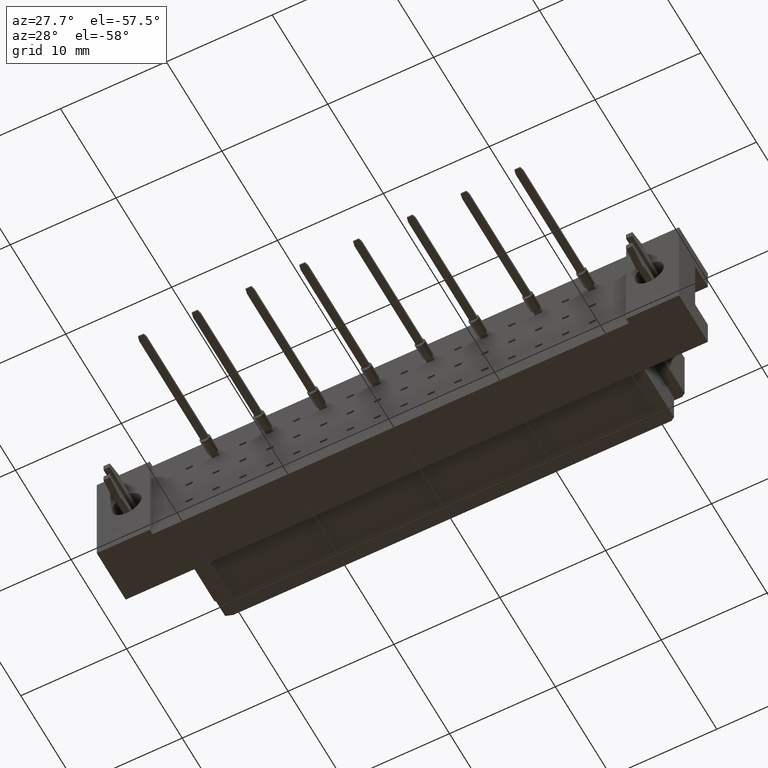
[diagram: clean part render]
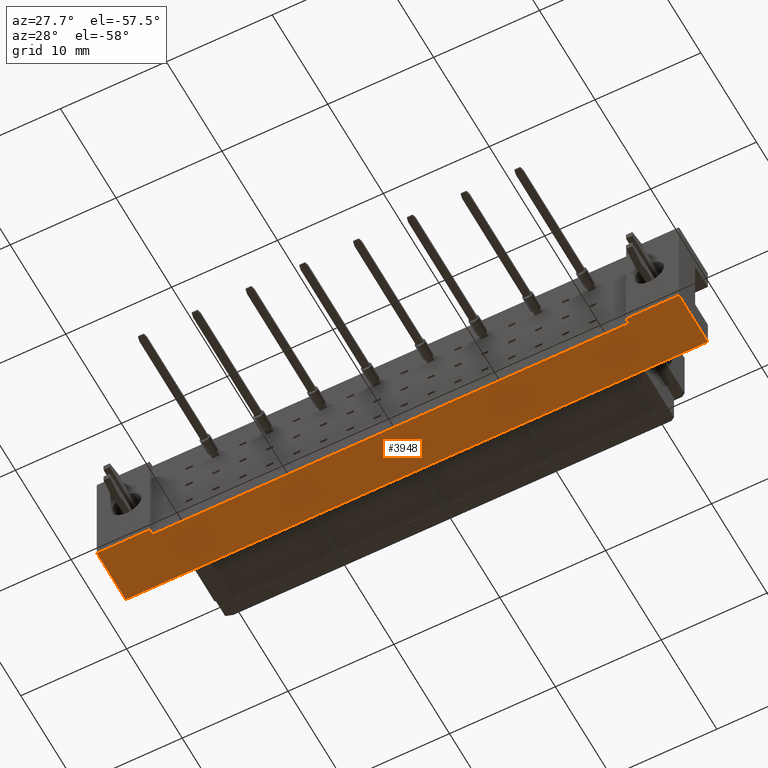
[diagram: same view with one face highlighted and labeled with its STEP entity id]
A machine part, auxiliary view. The second image highlights one B-rep face of the part: STEP entity #3948.
In plain terms, the highlighted planar face has unit normal (0, 0, -1).
Its self-contained STEP definition (entity closure, byte-faithful):
#194 = VECTOR ( 'NONE', #4040, 1000.000000000000000 ) ;
#303 = DIRECTION ( 'NONE',  ( -0.0000000000000000000, -1.000000000000000000, -6.123031769111886291E-17 ) ) ;
#373 = LINE ( 'NONE', #2158, #12368 ) ;
#433 = CARTESIAN_POINT ( 'NONE',  ( 22.50000000000001421, -11.09999999999999787, -5.300000000000000711 ) ) ;
#840 = VECTOR ( 'NONE', #6130, 1000.000000000000000 ) ;
#997 = PLANE ( 'NONE',  #2686 ) ;
#1035 = VERTEX_POINT ( 'NONE', #15570 ) ;
#1263 = VERTEX_POINT ( 'NONE', #15340 ) ;
#2158 = CARTESIAN_POINT ( 'NONE',  ( -27.50000000000000355, -11.59999999999999964, -5.299999999999999822 ) ) ;
#2470 = VERTEX_POINT ( 'NONE', #7110 ) ;
#2686 = AXIS2_PLACEMENT_3D ( 'NONE', #12120, #4063, #10520 ) ;
#2846 = LINE ( 'NONE', #8905, #194 ) ;
#3948 = ADVANCED_FACE ( 'NONE', ( #5657 ), #997, .T. ) ;
#4040 = DIRECTION ( 'NONE',  ( 0.0000000000000000000, 1.000000000000000000, 0.0000000000000000000 ) ) ;
#4063 = DIRECTION ( 'NONE',  ( 0.0000000000000000000, 0.0000000000000000000, -1.000000000000000000 ) ) ;
#4264 = DIRECTION ( 'NONE',  ( -0.0000000000000000000, -1.000000000000000000, -6.123031769111886291E-17 ) ) ;
#4541 = VECTOR ( 'NONE', #13130, 1000.000000000000000 ) ;
#5079 = LINE ( 'NONE', #433, #4541 ) ;
#5338 = EDGE_CURVE ( 'NONE', #1035, #16024, #2846, .T. ) ;
#5446 = DIRECTION ( 'NONE',  ( -1.000000000000000000, -0.0000000000000000000, -0.0000000000000000000 ) ) ;
#5540 = CARTESIAN_POINT ( 'NONE',  ( -27.50000000000000355, -11.59999999999999964, -5.299999999999999822 ) ) ;
#5657 = FACE_OUTER_BOUND ( 'NONE', #13221, .T. ) ;
#5731 = CARTESIAN_POINT ( 'NONE',  ( 27.49999999999999645, -6.400000000000001243, -5.299999999999999822 ) ) ;
#6039 = EDGE_CURVE ( 'NONE', #1263, #2470, #373, .T. ) ;
#6130 = DIRECTION ( 'NONE',  ( -1.000000000000000000, 0.0000000000000000000, 0.0000000000000000000 ) ) ;
#6550 = ORIENTED_EDGE ( 'NONE', *, *, #13792, .F. ) ;
#6725 = EDGE_CURVE ( 'NONE', #18082, #1263, #11293, .T. ) ;
#6993 = VECTOR ( 'NONE', #5446, 1000.000000000000000 ) ;
#7110 = CARTESIAN_POINT ( 'NONE',  ( -27.50000000000000355, -11.59999999999999964, -5.299999999999999822 ) ) ;
#7641 = VECTOR ( 'NONE', #303, 1000.000000000000000 ) ;
#7825 = ORIENTED_EDGE ( 'NONE', *, *, #20463, .T. ) ;
#7921 = CARTESIAN_POINT ( 'NONE',  ( 22.50000000000001421, -11.09999999999999787, -5.300000000000000711 ) ) ;
#8383 = ORIENTED_EDGE ( 'NONE', *, *, #5338, .F. ) ;
#8498 = ORIENTED_EDGE ( 'NONE', *, *, #9264, .F. ) ;
#8499 = LINE ( 'NONE', #5540, #15337 ) ;
#8905 = CARTESIAN_POINT ( 'NONE',  ( 27.49999999999999645, -11.59999999999999964, -5.299999999999999822 ) ) ;
#9264 = EDGE_CURVE ( 'NONE', #18082, #19931, #5079, .T. ) ;
#9708 = CARTESIAN_POINT ( 'NONE',  ( -22.50000000000001421, -11.09999999999999787, -5.300000000000000711 ) ) ;
#9870 = CARTESIAN_POINT ( 'NONE',  ( 22.50000000000001421, -11.59999999999999964, -5.300000000000000711 ) ) ;
#9993 = DIRECTION ( 'NONE',  ( -1.000000000000000000, -0.0000000000000000000, -0.0000000000000000000 ) ) ;
#10113 = CARTESIAN_POINT ( 'NONE',  ( 27.49999999999999645, -6.400000000000001243, -5.299999999999999822 ) ) ;
#10520 = DIRECTION ( 'NONE',  ( -1.000000000000000000, 0.0000000000000000000, -0.0000000000000000000 ) ) ;
#11293 = LINE ( 'NONE', #9708, #7641 ) ;
#12120 = CARTESIAN_POINT ( 'NONE',  ( -27.50000000000000355, -11.59999999999999964, -5.299999999999999822 ) ) ;
#12276 = VERTEX_POINT ( 'NONE', #16780 ) ;
#12368 = VECTOR ( 'NONE', #9993, 1000.000000000000000 ) ;
#13130 = DIRECTION ( 'NONE',  ( 1.000000000000000000, -0.0000000000000000000, -0.0000000000000000000 ) ) ;
#13221 = EDGE_LOOP ( 'NONE', ( #19319, #8498, #15331, #17381, #7825, #6550, #8383, #18051 ) ) ;
#13268 = EDGE_CURVE ( 'NONE', #1035, #17869, #19746, .T. ) ;
#13292 = EDGE_CURVE ( 'NONE', #19931, #17869, #13810, .T. ) ;
#13792 = EDGE_CURVE ( 'NONE', #16024, #12276, #17073, .T. ) ;
#13798 = DIRECTION ( 'NONE',  ( 0.0000000000000000000, 1.000000000000000000, 0.0000000000000000000 ) ) ;
#13810 = LINE ( 'NONE', #19085, #15112 ) ;
#15112 = VECTOR ( 'NONE', #4264, 1000.000000000000000 ) ;
#15331 = ORIENTED_EDGE ( 'NONE', *, *, #6725, .T. ) ;
#15337 = VECTOR ( 'NONE', #13798, 1000.000000000000000 ) ;
#15340 = CARTESIAN_POINT ( 'NONE',  ( -22.50000000000001421, -11.59999999999999964, -5.300000000000000711 ) ) ;
#15403 = CARTESIAN_POINT ( 'NONE',  ( -27.50000000000000355, -11.59999999999999964, -5.299999999999999822 ) ) ;
#15570 = CARTESIAN_POINT ( 'NONE',  ( 27.49999999999999645, -11.59999999999999964, -5.299999999999999822 ) ) ;
#15681 = CARTESIAN_POINT ( 'NONE',  ( -22.50000000000001421, -11.09999999999999787, -5.300000000000000711 ) ) ;
#16024 = VERTEX_POINT ( 'NONE', #10113 ) ;
#16780 = CARTESIAN_POINT ( 'NONE',  ( -27.50000000000000355, -6.400000000000001243, -5.299999999999999822 ) ) ;
#17073 = LINE ( 'NONE', #5731, #840 ) ;
#17381 = ORIENTED_EDGE ( 'NONE', *, *, #6039, .T. ) ;
#17869 = VERTEX_POINT ( 'NONE', #9870 ) ;
#18051 = ORIENTED_EDGE ( 'NONE', *, *, #13268, .T. ) ;
#18082 = VERTEX_POINT ( 'NONE', #15681 ) ;
#19085 = CARTESIAN_POINT ( 'NONE',  ( 22.50000000000001421, -11.09999999999999787, -5.300000000000000711 ) ) ;
#19319 = ORIENTED_EDGE ( 'NONE', *, *, #13292, .F. ) ;
#19746 = LINE ( 'NONE', #15403, #6993 ) ;
#19931 = VERTEX_POINT ( 'NONE', #7921 ) ;
#20463 = EDGE_CURVE ( 'NONE', #2470, #12276, #8499, .T. ) ;